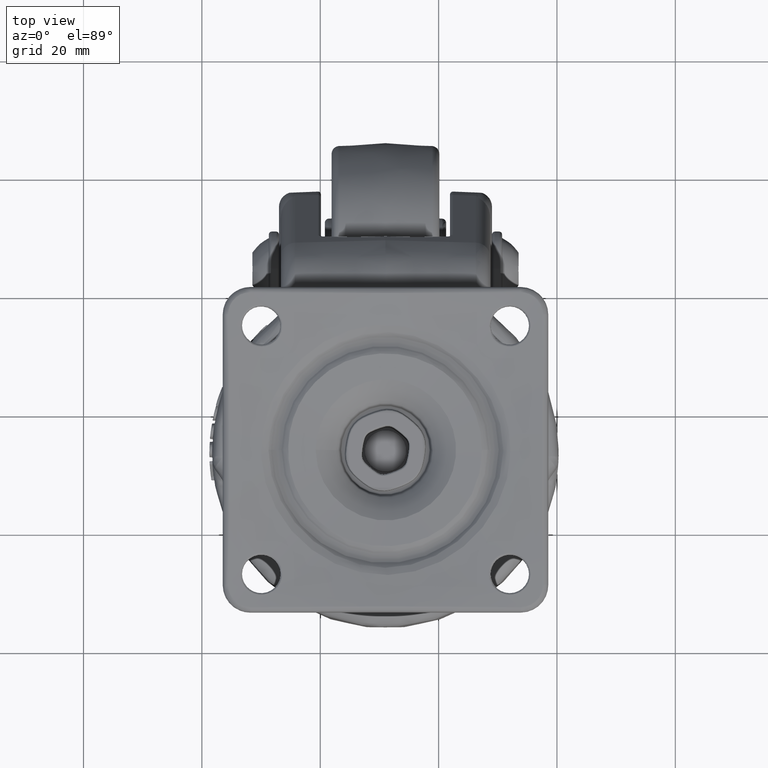
[diagram: clean part render]
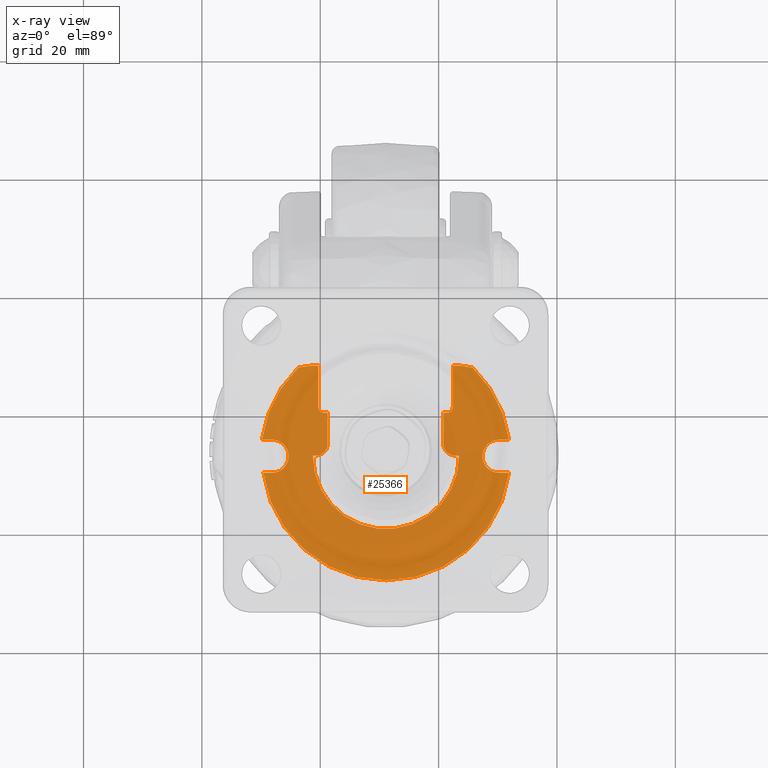
[diagram: x-ray — body ghosted, one internal face saturated and labeled with its STEP entity id]
A machine part, top view, then the same camera in x-ray: the body is ghosted and one INTERNAL B-rep face — a face not visible from any outside direction — is saturated and labeled: STEP entity #25366.
In plain terms, the highlighted planar face has unit normal (-0, 0, 1).
Its self-contained STEP definition (entity closure, byte-faithful):
#2886=PLANE('',#27050);
#3195=LINE('',#36090,#4159);
#3196=LINE('',#36094,#4160);
#3197=LINE('',#36096,#4161);
#3198=LINE('',#36100,#4162);
#3199=LINE('',#36102,#4163);
#3200=LINE('',#36104,#4164);
#3201=LINE('',#36108,#4165);
#3202=LINE('',#36112,#4166);
#3203=LINE('',#36116,#4167);
#3204=LINE('',#36120,#4168);
#3205=LINE('',#36124,#4169);
#3206=LINE('',#36126,#4170);
#3207=LINE('',#36128,#4171);
#3208=LINE('',#36132,#4172);
#3209=LINE('',#36134,#4173);
#3210=LINE('',#36138,#4174);
#4159=VECTOR('',#29752,0.504353734774659);
#4160=VECTOR('',#29755,5.23884519289877);
#4161=VECTOR('',#29756,0.593093459540224);
#4162=VECTOR('',#29759,6.96590466011605);
#4163=VECTOR('',#29760,1.06947530835944);
#4164=VECTOR('',#29761,2.31972830056919);
#4165=VECTOR('',#29764,1.70755383583309);
#4166=VECTOR('',#29767,1.47804982593482);
#4167=VECTOR('',#29770,1.7149941958366);
#4168=VECTOR('',#29773,1.7075538358331);
#4169=VECTOR('',#29776,2.3197283005692);
#4170=VECTOR('',#29777,1.0694753083594);
#4171=VECTOR('',#29778,6.96590466011605);
#4172=VECTOR('',#29781,0.593093459540199);
#4173=VECTOR('',#29782,5.23884519289877);
#4174=VECTOR('',#29785,0.658491828911298);
#5814=FACE_OUTER_BOUND('',#7451,.T.);
#7451=EDGE_LOOP('',(#9237,#9238,#9239,#9240,#9241,#9242,#9243,#9244,#9245,
#9246,#9247,#9248,#9249,#9250,#9251,#9252,#9253,#9254,#9255,#9256,#9257,
#9258,#9259,#9260,#9261,#9262));
#9237=ORIENTED_EDGE('',*,*,#17341,.F.);
#9238=ORIENTED_EDGE('',*,*,#17342,.T.);
#9239=ORIENTED_EDGE('',*,*,#17343,.F.);
#9240=ORIENTED_EDGE('',*,*,#17344,.F.);
#9241=ORIENTED_EDGE('',*,*,#17345,.T.);
#9242=ORIENTED_EDGE('',*,*,#17346,.F.);
#9243=ORIENTED_EDGE('',*,*,#17347,.T.);
#9244=ORIENTED_EDGE('',*,*,#17348,.T.);
#9245=ORIENTED_EDGE('',*,*,#17349,.T.);
#9246=ORIENTED_EDGE('',*,*,#17350,.T.);
#9247=ORIENTED_EDGE('',*,*,#17351,.T.);
#9248=ORIENTED_EDGE('',*,*,#17352,.T.);
#9249=ORIENTED_EDGE('',*,*,#17353,.F.);
#9250=ORIENTED_EDGE('',*,*,#17354,.F.);
#9251=ORIENTED_EDGE('',*,*,#17355,.F.);
#9252=ORIENTED_EDGE('',*,*,#17356,.F.);
#9253=ORIENTED_EDGE('',*,*,#17357,.F.);
#9254=ORIENTED_EDGE('',*,*,#17358,.F.);
#9255=ORIENTED_EDGE('',*,*,#17359,.F.);
#9256=ORIENTED_EDGE('',*,*,#17360,.T.);
#9257=ORIENTED_EDGE('',*,*,#17361,.T.);
#9258=ORIENTED_EDGE('',*,*,#17362,.T.);
#9259=ORIENTED_EDGE('',*,*,#17363,.T.);
#9260=ORIENTED_EDGE('',*,*,#17364,.T.);
#9261=ORIENTED_EDGE('',*,*,#17365,.T.);
#9262=ORIENTED_EDGE('',*,*,#17366,.T.);
#17341=EDGE_CURVE('',#21396,#21397,#3195,.T.);
#17342=EDGE_CURVE('',#21396,#21398,#23991,.T.);
#17343=EDGE_CURVE('',#21399,#21398,#3196,.T.);
#17344=EDGE_CURVE('',#21400,#21399,#3197,.T.);
#17345=EDGE_CURVE('',#21400,#21401,#23992,.T.);
#17346=EDGE_CURVE('',#21402,#21401,#3198,.T.);
#17347=EDGE_CURVE('',#21402,#21403,#3199,.T.);
#17348=EDGE_CURVE('',#21403,#21404,#3200,.T.);
#17349=EDGE_CURVE('',#21404,#21405,#23993,.T.);
#17350=EDGE_CURVE('',#21405,#21406,#3201,.T.);
#17351=EDGE_CURVE('',#21406,#21407,#23994,.T.);
#17352=EDGE_CURVE('',#21407,#21408,#3202,.T.);
#17353=EDGE_CURVE('',#21409,#21408,#23995,.T.);
#17354=EDGE_CURVE('',#21410,#21409,#3203,.T.);
#17355=EDGE_CURVE('',#21411,#21410,#23996,.T.);
#17356=EDGE_CURVE('',#21412,#21411,#3204,.T.);
#17357=EDGE_CURVE('',#21413,#21412,#23997,.T.);
#17358=EDGE_CURVE('',#21414,#21413,#3205,.T.);
#17359=EDGE_CURVE('',#21415,#21414,#3206,.T.);
#17360=EDGE_CURVE('',#21415,#21416,#3207,.T.);
#17361=EDGE_CURVE('',#21416,#21417,#23998,.T.);
#17362=EDGE_CURVE('',#21417,#21418,#3208,.T.);
#17363=EDGE_CURVE('',#21418,#21419,#3209,.T.);
#17364=EDGE_CURVE('',#21419,#21420,#23999,.T.);
#17365=EDGE_CURVE('',#21420,#21421,#3210,.T.);
#17366=EDGE_CURVE('',#21421,#21397,#24000,.T.);
#21396=VERTEX_POINT('',#36088);
#21397=VERTEX_POINT('',#36089);
#21398=VERTEX_POINT('',#36091);
#21399=VERTEX_POINT('',#36093);
#21400=VERTEX_POINT('',#36095);
#21401=VERTEX_POINT('',#36097);
#21402=VERTEX_POINT('',#36099);
#21403=VERTEX_POINT('',#36101);
#21404=VERTEX_POINT('',#36103);
#21405=VERTEX_POINT('',#36105);
#21406=VERTEX_POINT('',#36107);
#21407=VERTEX_POINT('',#36109);
#21408=VERTEX_POINT('',#36111);
#21409=VERTEX_POINT('',#36113);
#21410=VERTEX_POINT('',#36115);
#21411=VERTEX_POINT('',#36117);
#21412=VERTEX_POINT('',#36119);
#21413=VERTEX_POINT('',#36121);
#21414=VERTEX_POINT('',#36123);
#21415=VERTEX_POINT('',#36125);
#21416=VERTEX_POINT('',#36127);
#21417=VERTEX_POINT('',#36129);
#21418=VERTEX_POINT('',#36131);
#21419=VERTEX_POINT('',#36133);
#21420=VERTEX_POINT('',#36135);
#21421=VERTEX_POINT('',#36137);
#23991=CIRCLE('',#27051,2.);
#23992=CIRCLE('',#27052,1.);
#23993=CIRCLE('',#27053,20.95);
#23994=CIRCLE('',#27054,2.7991609822639);
#23995=CIRCLE('',#27055,20.95);
#23996=CIRCLE('',#27056,2.7991609822639);
#23997=CIRCLE('',#27057,20.95);
#23998=CIRCLE('',#27058,1.);
#23999=CIRCLE('',#27059,2.);
#24000=CIRCLE('',#27060,12.3543180188703);
#25366=ADVANCED_FACE('',(#5814),#2886,.T.);
#27050=AXIS2_PLACEMENT_3D('',#36087,#29750,#29751);
#27051=AXIS2_PLACEMENT_3D('',#36092,#29753,#29754);
#27052=AXIS2_PLACEMENT_3D('',#36098,#29757,#29758);
#27053=AXIS2_PLACEMENT_3D('',#36106,#29762,#29763);
#27054=AXIS2_PLACEMENT_3D('',#36110,#29765,#29766);
#27055=AXIS2_PLACEMENT_3D('',#36114,#29768,#29769);
#27056=AXIS2_PLACEMENT_3D('',#36118,#29771,#29772);
#27057=AXIS2_PLACEMENT_3D('',#36122,#29774,#29775);
#27058=AXIS2_PLACEMENT_3D('',#36130,#29779,#29780);
#27059=AXIS2_PLACEMENT_3D('',#36136,#29783,#29784);
#27060=AXIS2_PLACEMENT_3D('',#36139,#29786,#29787);
#29750=DIRECTION('center_axis',(-7.88860905221012E-31,1.18329135783152E-30,
1.));
#29751=DIRECTION('ref_axis',(1.,0.,0.));
#29752=DIRECTION('',(-1.,1.55575381946529E-61,-7.88860905221012E-31));
#29753=DIRECTION('center_axis',(-7.88860905221012E-31,1.18329135783152E-30,
1.));
#29754=DIRECTION('ref_axis',(1.,-1.55575381946529E-61,7.88860905221012E-31));
#29755=DIRECTION('',(-1.0890276736257E-60,-1.,1.18329135783152E-30));
#29756=DIRECTION('',(1.,-1.55575381946529E-61,7.88860905221012E-31));
#29757=DIRECTION('center_axis',(7.88860905221012E-31,-1.18329135783152E-30,
-1.));
#29758=DIRECTION('ref_axis',(1.,-1.55575381946529E-61,7.88860905221012E-31));
#29759=DIRECTION('',(-1.0890276736257E-60,-1.,1.18329135783152E-30));
#29760=DIRECTION('',(-1.,1.55575381946529E-61,-7.88860905221012E-31));
#29761=DIRECTION('',(-0.989777578331357,-0.142619582920837,-6.12036316482173E-31));
#29762=DIRECTION('center_axis',(-7.88860905221012E-31,1.18329135783152E-30,
1.));
#29763=DIRECTION('ref_axis',(-1.,1.55575381946529E-61,-7.88860905221012E-31));
#29764=DIRECTION('',(1.,-1.55575381946529E-61,7.88860905221012E-31));
#29765=DIRECTION('center_axis',(7.88860905221012E-31,-1.18329135783152E-30,
-1.));
#29766=DIRECTION('ref_axis',(-1.,1.55575381946529E-61,-7.88860905221012E-31));
#29767=DIRECTION('',(-1.,1.55575381946529E-61,-7.88860905221012E-31));
#29768=DIRECTION('center_axis',(7.88860905221012E-31,-1.18329135783152E-30,
-1.));
#29769=DIRECTION('ref_axis',(1.,-1.55575381946529E-61,7.88860905221012E-31));
#29770=DIRECTION('',(1.,-1.55575381946529E-61,7.88860905221012E-31));
#29771=DIRECTION('center_axis',(-7.88860905221012E-31,1.18329135783152E-30,
1.));
#29772=DIRECTION('ref_axis',(1.,-1.55575381946529E-61,7.88860905221012E-31));
#29773=DIRECTION('',(-1.,1.55575381946529E-61,-7.88860905221012E-31));
#29774=DIRECTION('center_axis',(7.88860905221012E-31,-1.18329135783152E-30,
-1.));
#29775=DIRECTION('ref_axis',(1.,-1.55575381946529E-61,7.88860905221012E-31));
#29776=DIRECTION('',(0.989777578331357,-0.142619582920837,9.49557356337697E-31));
#29777=DIRECTION('',(1.,-1.55575381946529E-61,7.88860905221012E-31));
#29778=DIRECTION('',(-1.0890276736257E-60,-1.,1.18329135783152E-30));
#29779=DIRECTION('center_axis',(7.88860905221012E-31,-1.18329135783152E-30,
-1.));
#29780=DIRECTION('ref_axis',(1.,-1.55575381946529E-61,7.88860905221012E-31));
#29781=DIRECTION('',(-1.,1.55575381946529E-61,-7.88860905221012E-31));
#29782=DIRECTION('',(-1.0890276736257E-60,-1.,1.18329135783152E-30));
#29783=DIRECTION('center_axis',(-7.88860905221012E-31,1.18329135783152E-30,
1.));
#29784=DIRECTION('ref_axis',(1.,-1.55575381946529E-61,7.88860905221012E-31));
#29785=DIRECTION('',(1.,-1.55575381946529E-61,7.88860905221012E-31));
#29786=DIRECTION('center_axis',(7.88860905221012E-31,-1.18329135783152E-30,
-1.));
#29787=DIRECTION('ref_axis',(1.,-1.55575381946529E-61,7.88860905221012E-31));
#36087=CARTESIAN_POINT('Origin',(11.0267015888369,-6.79677513466949,-37.3972733101838));
#36088=CARTESIAN_POINT('',(-0.746081560477321,-6.83318561838423,-37.3972733101838));
#36089=CARTESIAN_POINT('',(-1.25043529525198,-6.83318561838423,-37.3972733101838));
#36090=CARTESIAN_POINT('',(1.25391843952268,-6.83318561838423,-37.3972733101838));
#36091=CARTESIAN_POINT('',(1.25391843952268,-4.83318561838423,-37.3972733101838));
#36092=CARTESIAN_POINT('Origin',(-0.746081560477321,-4.83318561838423,-37.3972733101838));
#36093=CARTESIAN_POINT('',(1.25391843952268,0.405659574514544,-37.3972733101838));
#36094=CARTESIAN_POINT('',(1.25391843952268,7.54761749257934,-37.3972733101838));
#36095=CARTESIAN_POINT('',(0.660824979982455,0.405659574514544,-37.3972733101838));
#36096=CARTESIAN_POINT('',(11.0267015888369,0.405659574514544,-37.3972733101838));
#36097=CARTESIAN_POINT('',(-0.339175020017542,1.40565957451454,-37.3972733101838));
#36098=CARTESIAN_POINT('Origin',(0.660824979982455,1.40565957451454,-37.3972733101838));
#36099=CARTESIAN_POINT('',(-0.339175020017545,8.37156423463059,-37.3972733101838));
#36100=CARTESIAN_POINT('',(-0.339175020017542,-6.79677513466949,-37.3972733101838));
#36101=CARTESIAN_POINT('',(-1.40865032837698,8.37156423463059,-37.3972733101838));
#36102=CARTESIAN_POINT('',(23.2251091361489,8.37156423463059,-37.3972733101838));
#36103=CARTESIAN_POINT('',(-3.70466538810107,8.04072555191374,-37.3972733101838));
#36104=CARTESIAN_POINT('',(-1.40865032837683,8.3715642346306,-37.3972733101838));
#36105=CARTESIAN_POINT('',(-9.85018957732365,-4.14470845237956,-37.3972733101838));
#36106=CARTESIAN_POINT('Origin',(10.908229403886,-6.97146302265185,-37.3972733101838));
#36107=CARTESIAN_POINT('',(-8.14263574149056,-4.14470845237956,-37.3972733101838));
#36108=CARTESIAN_POINT('',(11.0267015888369,-4.14470845237956,-37.3972733101838));
#36109=CARTESIAN_POINT('',(-8.14263574149177,-9.74303041690737,-37.3972733101838));
#36110=CARTESIAN_POINT('Origin',(-8.14263574149116,-6.94386943464346,-37.3972733101838));
#36111=CARTESIAN_POINT('',(-9.62068556742659,-9.74303041690737,-37.3972733101838));
#36112=CARTESIAN_POINT('',(11.0267015888369,-9.74303041690737,-37.3972733101838));
#36113=CARTESIAN_POINT('',(31.9110331150021,-9.74303041690737,-37.3972733101838));
#36114=CARTESIAN_POINT('Origin',(11.1451737737878,-6.97146302265185,-37.3972733101838));
#36115=CARTESIAN_POINT('',(30.1960389191655,-9.74303041690737,-37.3972733101838));
#36116=CARTESIAN_POINT('',(11.0267015888369,-9.74303041690737,-37.3972733101838));
#36117=CARTESIAN_POINT('',(30.1960389191643,-4.14470845237956,-37.3972733101838));
#36118=CARTESIAN_POINT('Origin',(30.1960389191649,-6.94386943464346,-37.3972733101838));
#36119=CARTESIAN_POINT('',(31.9035927549974,-4.14470845237956,-37.3972733101838));
#36120=CARTESIAN_POINT('',(11.0267015888369,-4.14470845237956,-37.3972733101838));
#36121=CARTESIAN_POINT('',(25.7580685657748,8.04072555191374,-37.3972733101838));
#36122=CARTESIAN_POINT('Origin',(11.1451737737878,-6.97146302265185,-37.3972733101838));
#36123=CARTESIAN_POINT('',(23.4620535060507,8.37156423463059,-37.3972733101838));
#36124=CARTESIAN_POINT('',(23.4620535060506,8.3715642346306,-37.3972733101838));
#36125=CARTESIAN_POINT('',(22.3925781976913,8.37156423463059,-37.3972733101838));
#36126=CARTESIAN_POINT('',(-1.17170595847509,8.37156423463059,-37.3972733101838));
#36127=CARTESIAN_POINT('',(22.3925781976913,1.40565957451454,-37.3972733101838));
#36128=CARTESIAN_POINT('',(22.3925781976913,-6.79677513466949,-37.3972733101838));
#36129=CARTESIAN_POINT('',(21.3925781976913,0.405659574514544,-37.3972733101838));
#36130=CARTESIAN_POINT('Origin',(21.3925781976913,1.40565957451454,-37.3972733101838));
#36131=CARTESIAN_POINT('',(20.7994847381511,0.405659574514544,-37.3972733101838));
#36132=CARTESIAN_POINT('',(11.0267015888369,0.405659574514544,-37.3972733101838));
#36133=CARTESIAN_POINT('',(20.7994847381511,-4.83318561838423,-37.3972733101838));
#36134=CARTESIAN_POINT('',(20.7994847381511,7.54761749257934,-37.3972733101838));
#36135=CARTESIAN_POINT('',(22.7994847381511,-6.83318561838423,-37.3972733101838));
#36136=CARTESIAN_POINT('Origin',(22.7994847381511,-4.83318561838423,-37.3972733101838));
#36137=CARTESIAN_POINT('',(23.4579765670624,-6.83318561838423,-37.3972733101838));
#36138=CARTESIAN_POINT('',(20.7994847381511,-6.83318561838423,-37.3972733101838));
#36139=CARTESIAN_POINT('Origin',(11.1037706359052,-6.88581186605133,-37.3972733101838));